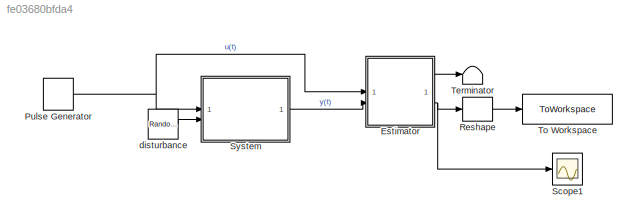
MODEL slx_fe03680bfda4
KIND model
CONFIG AbsTol = auto
CONFIG EnableMultiTasking = off
CONFIG FixedStep = sample_time
CONFIG MaxStep = auto
CONFIG MinStep = auto
CONFIG RelTol = 1e-3
CONFIG SampleTimeConstraint = Unconstrained
CONFIG SolverName = FixedStepAuto
CONFIG StartTime = start_time
CONFIG StopTime = stop_time
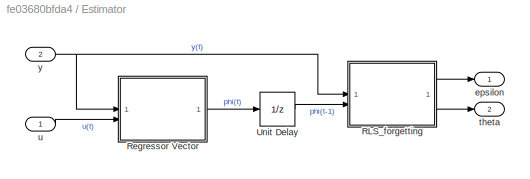
BLOCK [SubSystem] Estimator
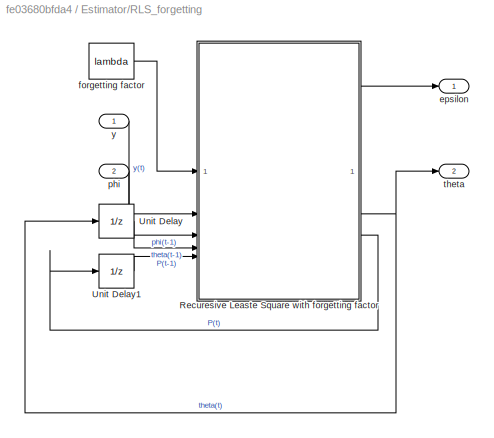
BLOCK [SubSystem] Estimator/RLS_forgetting
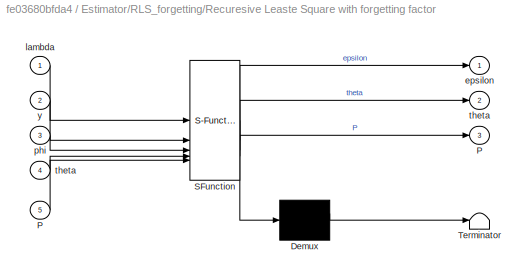
BLOCK [SubSystem] Estimator/RLS_forgetting/Recuresive Leaste Square with forgetting factor
  ErrorFcn = Stateflow.Translate.translate
  LibrarySourceBlock = simulink/User-Defined\nFunctions/MATLAB Function
  PermitHierarchicalResolution = ExplicitOnly
  SFBlockType = MATLAB Function
  TreatAsAtomicUnit = on
BLOCK [Demux] Estimator/RLS_forgetting/Recuresive Leaste Square with forgetting factor/ Demux 
  Outputs = 1
BLOCK [S-Function] Estimator/RLS_forgetting/Recuresive Leaste Square with forgetting factor/ SFunction 
  EnableBusSupport = on
  FunctionName = sf_sfun
  PortCounts = [5 4]
  SFcnIsStateOwnerBlock = off
  SFunctionDeploymentMode = off
  Tag = Stateflow S-Function 2
BLOCK [Terminator] Estimator/RLS_forgetting/Recuresive Leaste Square with forgetting factor/ Terminator 
BLOCK [Outport] Estimator/RLS_forgetting/Recuresive Leaste Square with forgetting factor/P
  Port = 3
BLOCK [Inport] Estimator/RLS_forgetting/Recuresive Leaste Square with forgetting factor/P 
  Port = 5
BLOCK [Outport] Estimator/RLS_forgetting/Recuresive Leaste Square with forgetting factor/epsilon
BLOCK [Inport] Estimator/RLS_forgetting/Recuresive Leaste Square with forgetting factor/lambda
BLOCK [Inport] Estimator/RLS_forgetting/Recuresive Leaste Square with forgetting factor/phi
  Port = 3
BLOCK [Outport] Estimator/RLS_forgetting/Recuresive Leaste Square with forgetting factor/theta
  Port = 2
BLOCK [Inport] Estimator/RLS_forgetting/Recuresive Leaste Square with forgetting factor/theta 
  Port = 4
BLOCK [Inport] Estimator/RLS_forgetting/Recuresive Leaste Square with forgetting factor/y
  Port = 2
BLOCK [UnitDelay] Estimator/RLS_forgetting/Unit Delay
  HasFrameUpgradeWarning = on
  InitialCondition = theta0
  SampleTime = -1
BLOCK [UnitDelay] Estimator/RLS_forgetting/Unit Delay1
  HasFrameUpgradeWarning = on
  InitialCondition = P0
  SampleTime = -1
BLOCK [Outport] Estimator/RLS_forgetting/epsilon
BLOCK [Constant] Estimator/RLS_forgetting/forgetting factor
  Value = lambda
BLOCK [Inport] Estimator/RLS_forgetting/phi
  Port = 2
BLOCK [Outport] Estimator/RLS_forgetting/theta
  Port = 2
BLOCK [Inport] Estimator/RLS_forgetting/y
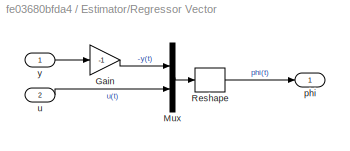
BLOCK [SubSystem] Estimator/Regressor Vector
BLOCK [Gain] Estimator/Regressor Vector/Gain
  Gain = -1
BLOCK [Mux] Estimator/Regressor Vector/Mux
  DisplayOption = bar
  Inputs = 2
BLOCK [Reshape] Estimator/Regressor Vector/Reshape
  OutputDimensionality = Column vector (2-D)
BLOCK [Outport] Estimator/Regressor Vector/phi
BLOCK [Inport] Estimator/Regressor Vector/u
  Port = 2
BLOCK [Inport] Estimator/Regressor Vector/y
BLOCK [UnitDelay] Estimator/Unit Delay
  HasFrameUpgradeWarning = on
  SampleTime = -1
BLOCK [Outport] Estimator/epsilon
BLOCK [Outport] Estimator/theta
  Port = 2
BLOCK [Inport] Estimator/u
BLOCK [Inport] Estimator/y
  Port = 2
BLOCK [DiscretePulseGenerator] Pulse Generator
  Period = 100
  PulseType = Time based
  PulseWidth = 50
BLOCK [Reshape] Reshape
BLOCK [Scope] Scope1
  Floating = off
  NumInputPorts = 1
  ScopeSpecificationString = Simulink.scopes.TimeScopeBlockCfg('CurrentConfiguration', extmgr.ConfigurationSet(extmgr.Configuration('Core','General UI',true),extmgr.Configuration('Core','Source UI',true),extmgr.Configuration('Sources','WiredSimulink',true),extmgr.Configuration('Visuals','Time Domain',true),extmgr.Configuration('Tools','Plot Navigation',true),extmgr.Configuration('Tools','Measurements',true)),'Version','2023a'...<+1ch>
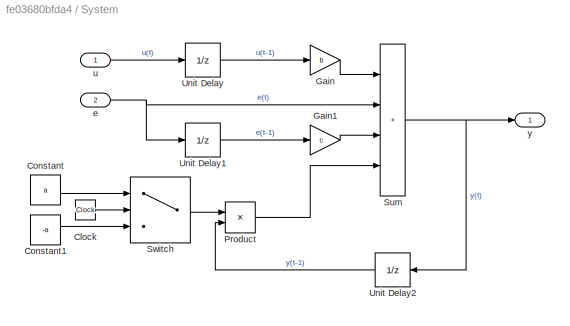
BLOCK [SubSystem] System
BLOCK [Clock] System/Clock
BLOCK [Constant] System/Constant
  Value = a
BLOCK [Constant] System/Constant1
  Value = -a
BLOCK [Gain] System/Gain
  Gain = b
BLOCK [Gain] System/Gain1
  Gain = c
BLOCK [Product] System/Product
BLOCK [Sum] System/Sum
  IconShape = rectangular
  Inputs = ++++
BLOCK [Switch] System/Switch
  Criteria = u2 > Threshold
  InputSameDT = off
  SaturateOnIntegerOverflow = off
  Threshold = stop_time/2
BLOCK [UnitDelay] System/Unit Delay
  HasFrameUpgradeWarning = on
  SampleTime = -1
BLOCK [UnitDelay] System/Unit Delay1
  HasFrameUpgradeWarning = on
  SampleTime = -1
BLOCK [UnitDelay] System/Unit Delay2
  HasFrameUpgradeWarning = on
  InitialCondition = y0
  NameLocation = top
  SampleTime = -1
BLOCK [Inport] System/e
  Port = 2
BLOCK [Inport] System/u
BLOCK [Outport] System/y
BLOCK [Terminator] Terminator
BLOCK [ToWorkspace] To Workspace
  FixptAsFi = on
  MaxDataPoints = inf
  SampleTime = -1
  SaveFormat = Timeseries
  VariableName = theta
BLOCK [RandomNumber] disturbance
  Mean = mean_e
  SampleTime = sample_time
  Seed = seed_e
  Variance = std_e^2
LINE Estimator/RLS_forgetting/Recuresive Leaste Square with forgetting factor:1 -> Estimator/RLS_forgetting/epsilon:1
NET Estimator/RLS_forgetting/Recuresive Leaste Square with forgetting factor:2 -> Estimator/RLS_forgetting/Unit Delay:1, Estimator/RLS_forgetting/theta:1
LINE Estimator/RLS_forgetting/Recuresive Leaste Square with forgetting factor:3 -> Estimator/RLS_forgetting/Unit Delay1:1
LINE Estimator/RLS_forgetting/Unit Delay1:1 -> Estimator/RLS_forgetting/Recuresive Leaste Square with forgetting factor:5
LINE Estimator/RLS_forgetting/Unit Delay:1 -> Estimator/RLS_forgetting/Recuresive Leaste Square with forgetting factor:4
LINE Estimator/RLS_forgetting/forgetting factor:1 -> Estimator/RLS_forgetting/Recuresive Leaste Square with forgetting factor:1
LINE Estimator/RLS_forgetting/phi:1 -> Estimator/RLS_forgetting/Recuresive Leaste Square with forgetting factor:3
LINE Estimator/RLS_forgetting/y:1 -> Estimator/RLS_forgetting/Recuresive Leaste Square with forgetting factor:2
LINE Estimator/RLS_forgetting:1 -> Estimator/epsilon:1
LINE Estimator/RLS_forgetting:2 -> Estimator/theta:1
LINE Estimator/Regressor Vector/Gain:1 -> Estimator/Regressor Vector/Mux:1
LINE Estimator/Regressor Vector/Mux:1 -> Estimator/Regressor Vector/Reshape:1
LINE Estimator/Regressor Vector/Reshape:1 -> Estimator/Regressor Vector/phi:1
LINE Estimator/Regressor Vector/u:1 -> Estimator/Regressor Vector/Mux:2
LINE Estimator/Regressor Vector/y:1 -> Estimator/Regressor Vector/Gain:1
LINE Estimator/Regressor Vector:1 -> Estimator/Unit Delay:1
LINE Estimator/Unit Delay:1 -> Estimator/RLS_forgetting:2
LINE Estimator/u:1 -> Estimator/Regressor Vector:2
NET Estimator/y:1 -> Estimator/RLS_forgetting:1, Estimator/Regressor Vector:1
LINE Estimator:1 -> Terminator:1
NET Estimator:2 -> Reshape:1, Scope1:1
NET Pulse Generator:1 -> Estimator:1, System:1
LINE Reshape:1 -> To Workspace:1
LINE System/Clock:1 -> System/Switch:2
LINE System/Constant1:1 -> System/Switch:3
LINE System/Constant:1 -> System/Switch:1
LINE System/Gain1:1 -> System/Sum:3
LINE System/Gain:1 -> System/Sum:1
LINE System/Product:1 -> System/Sum:4
NET System/Sum:1 -> System/Unit Delay2:1, System/y:1
LINE System/Switch:1 -> System/Product:1
LINE System/Unit Delay1:1 -> System/Gain1:1
LINE System/Unit Delay2:1 -> System/Product:2
LINE System/Unit Delay:1 -> System/Gain:1
NET System/e:1 -> System/Sum:2, System/Unit Delay1:1
LINE System/u:1 -> System/Unit Delay:1
LINE System:1 -> Estimator:2
LINE disturbance:1 -> System:2
note: NET lines group one-source signal fan-out (src -> all destinations, sorted); 1:1 wires keep LINE
CHART Estimator/RLS_forgetting/Recuresive Leaste Square 
with forgetting factor states=1 transitions=1
  STATE_LABEL 'eML_blk_kernel()'
  STATE_LABEL "SCRIPT:\nfunction [epsilon, theta, P] = RLS(lambda, y, phi, theta, P)\nepsilon = y - phi' * theta;\nK = P * phi / (lambda + phi'*P*phi);\nP = (eye(2) - K*phi') * P / lambda;\ntheta = theta + P * phi * epsilon;"
CHART  states=0 transitions=0
